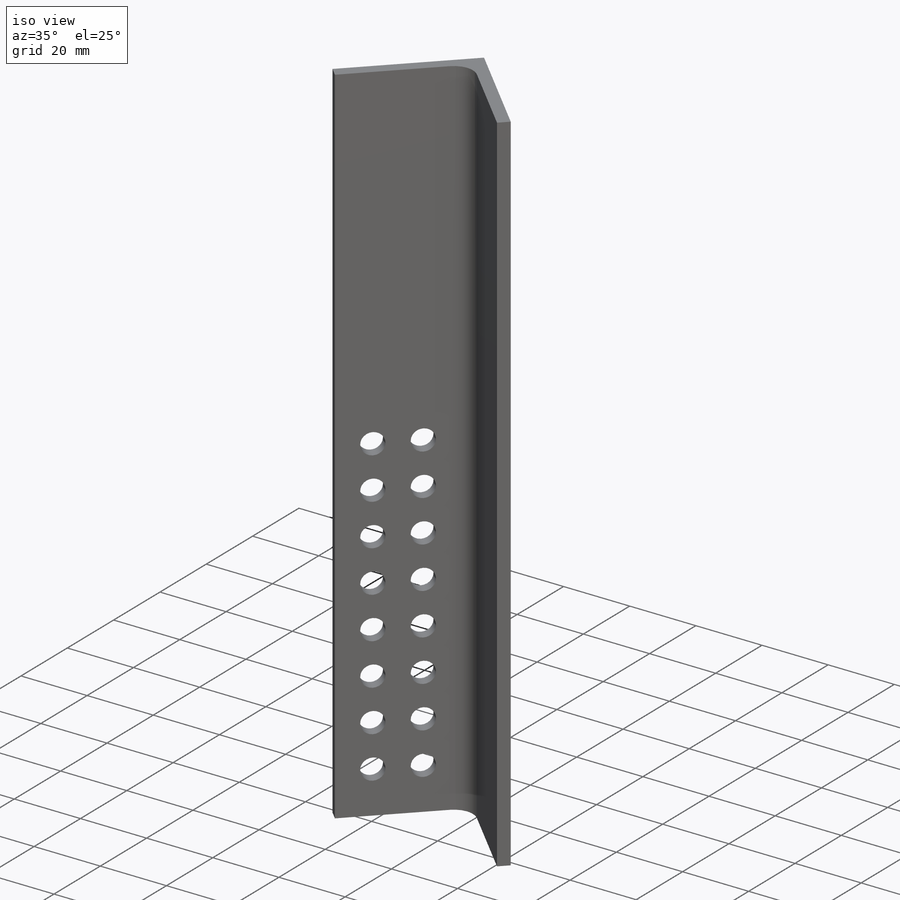
[diagram: iso view]
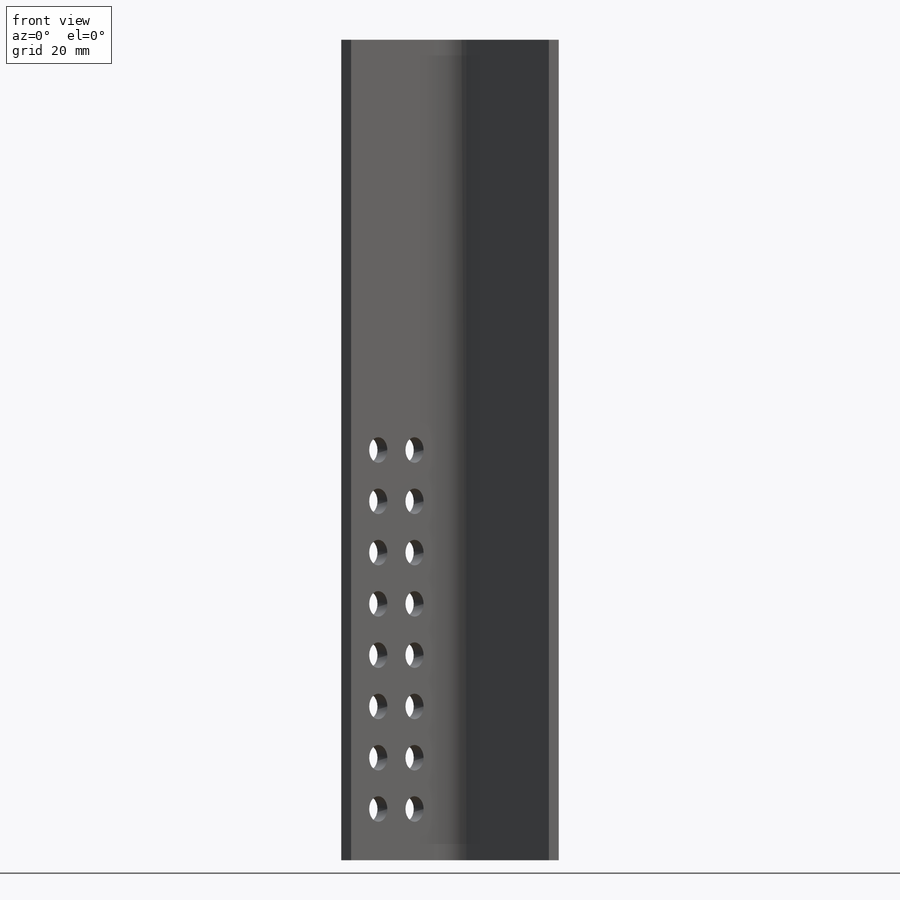
[diagram: front view]
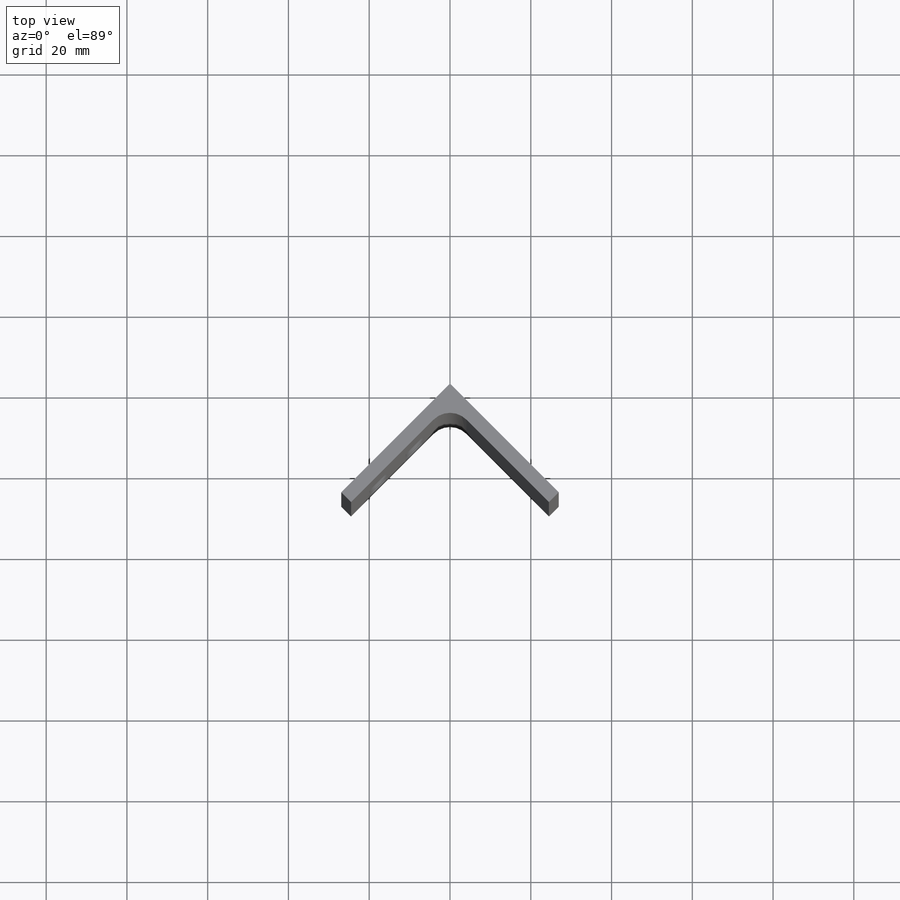
[diagram: top view]
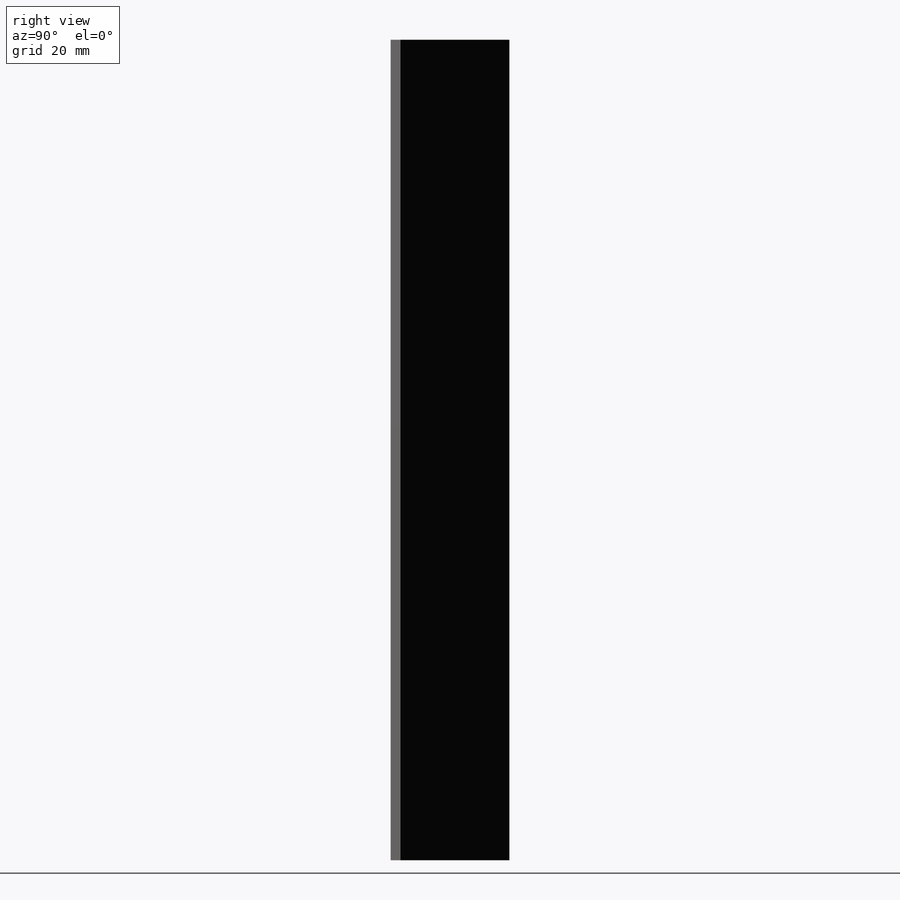
[diagram: right view]
SOLIDWORKS PART (.sldprt)
format: sldprt  version: not decoded by parser v0  size: 177,664 bytes
history: native  units: mm
features: sketch x3, material x1, extrude x1, fillet x1, hole x1, pattern_linear x1 (+12 scaffold rows collapsed)
feature tree (20):
  scaffold x12  (default folders/planes/origin — collapsed)
  material  "Material <not specified>"
  sketch  "Sketch1"  dims[D1=38.1mm D2=38.1mm D3=3.4544mm]
  extrude  "Boss-Extrude1"  Depth=203.2mm
  fillet  "Fillet1"  Radius=5.715mm
  hole  "1/4 (0.25) Diameter Hole1"  Diameter=6.35mm Depth=3.4544mm
  sketch  "Sketch4"  dims[D1=9.525mm D2=101.6mm]
  sketch  "Sketch3"  dims[hole-wizard template sketch: 60 standard entries collapsed; hole parameters kept: c18.Thru Hole Depth=3.4544mm]
  pattern_linear  "LPattern1"  Count1=2 Count2=8 Spacing1=12.7mm Spacing2=12.7mm
decode coverage: 7 of 7 modeling features carry decoded parameters
note: ~ marks probable driven/reference dimensions
note: suppression state not decoded; provenance and decode notes live in map.json
